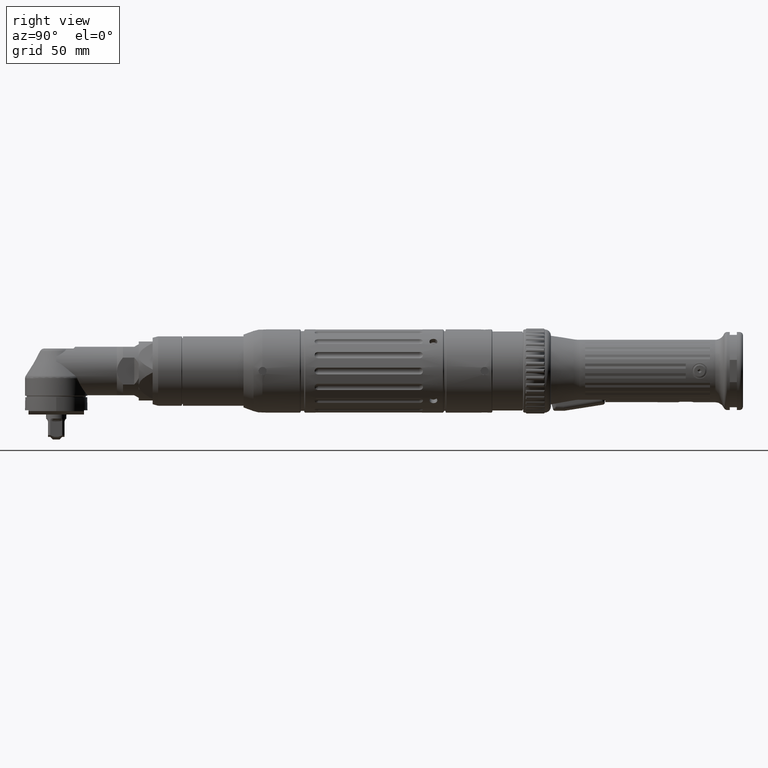
[diagram: clean part render]
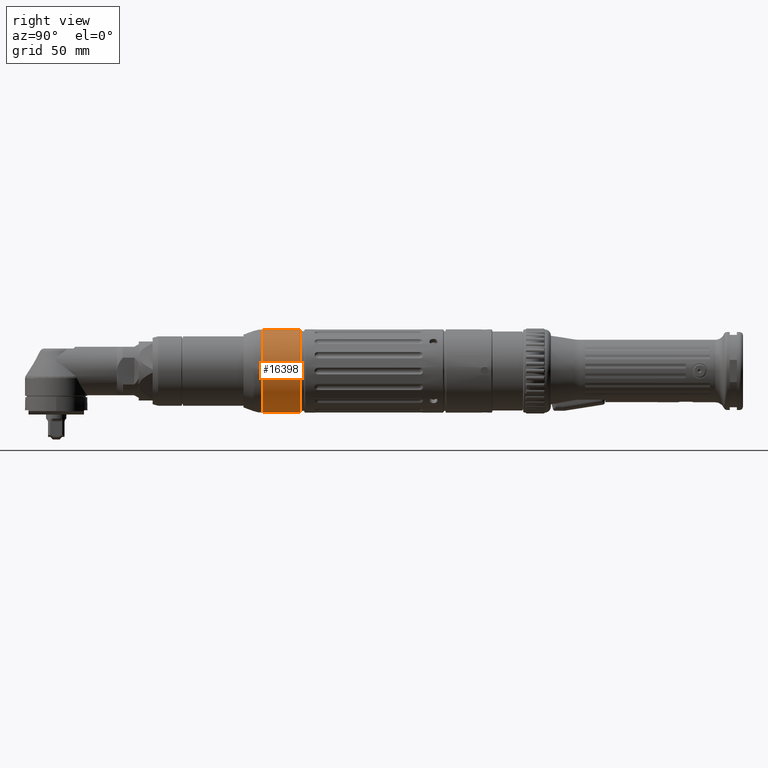
[diagram: same view with one face highlighted and labeled with its STEP entity id]
A machine part, right view. The second image highlights one B-rep face of the part: STEP entity #16398.
In plain terms, the highlighted cylindrical surface (bore or boss wall) has radius 24 mm, axis along (0, 1, 0).
Its self-contained STEP definition (entity closure, byte-faithful):
#2190=B_SPLINE_CURVE_WITH_KNOTS('',3,(#29928,#29929,#29930,#29931,#29932,
#29933,#29934,#29935,#29936,#29937,#29938,#29939,#29940),.UNSPECIFIED.,
 .F.,.F.,(4,2,2,2,3,4),(-0.346780210802976,-0.260085282455453,-0.173390354107931,
-0.0866951770539657,0.,0.011179592561845),.UNSPECIFIED.);
#2191=B_SPLINE_CURVE_WITH_KNOTS('',3,(#29941,#29942,#29943,#29944,#29945,
#29946,#29947,#29948,#29949,#29950,#29951,#29952),.UNSPECIFIED.,.F.,.F.,
(4,2,2,2,2,4),(-0.704740014157611,-0.693560421605951,-0.606865244551986,
-0.52017006749802,-0.433475139150498,-0.346780210802976),.UNSPECIFIED.);
#2192=B_SPLINE_CURVE_WITH_KNOTS('',3,(#29958,#29959,#29960,#29961,#29962,
#29963,#29964,#29965,#29966,#29967,#29968,#29969),.UNSPECIFIED.,.F.,.F.,
(4,2,2,2,2,4),(-0.704740014157612,-0.693560421605951,-0.606865244551985,
-0.52017006749802,-0.433475139150498,-0.346780210802975),.UNSPECIFIED.);
#2193=B_SPLINE_CURVE_WITH_KNOTS('',3,(#29970,#29971,#29972,#29973,#29974,
#29975,#29976,#29977,#29978,#29979,#29980,#29981,#29982),.UNSPECIFIED.,
 .F.,.F.,(4,2,2,2,3,4),(-0.346780210802975,-0.260085282455453,-0.173390354107931,
-0.0866951770539655,0.,0.0111795925618455),.UNSPECIFIED.);
#2194=B_SPLINE_CURVE_WITH_KNOTS('',3,(#29984,#29985,#29986,#29987,#29988,
#29989,#29990,#29991,#29992,#29993,#29994,#29995),.UNSPECIFIED.,.F.,.F.,
(4,2,2,2,2,4),(-0.704740014157611,-0.693560421605951,-0.606865244551985,
-0.52017006749802,-0.433475139150498,-0.346780210802976),.UNSPECIFIED.);
#2195=B_SPLINE_CURVE_WITH_KNOTS('',3,(#29996,#29997,#29998,#29999,#30000,
#30001,#30002,#30003,#30004,#30005,#30006,#30007,#30008),.UNSPECIFIED.,
 .F.,.F.,(4,2,2,2,3,4),(-0.346780210802976,-0.260085282455453,-0.173390354107931,
-0.0866951770539657,0.,0.011179592561845),.UNSPECIFIED.);
#2196=B_SPLINE_CURVE_WITH_KNOTS('',3,(#30010,#30011,#30012,#30013,#30014,
#30015,#30016,#30017,#30018,#30019,#30020,#30021),.UNSPECIFIED.,.F.,.F.,
(4,2,2,2,2,4),(-0.704740014157611,-0.693560421605951,-0.606865244551986,
-0.52017006749802,-0.433475139150498,-0.346780210802976),.UNSPECIFIED.);
#2197=B_SPLINE_CURVE_WITH_KNOTS('',3,(#30022,#30023,#30024,#30025,#30026,
#30027,#30028,#30029,#30030,#30031,#30032,#30033,#30034),.UNSPECIFIED.,
 .F.,.F.,(4,2,2,2,3,4),(-0.346780210802976,-0.260085282455453,-0.173390354107931,
-0.0866951770539657,0.,0.011179592561845),.UNSPECIFIED.);
#2473=CYLINDRICAL_SURFACE('',#18370,24.);
#2751=FACE_BOUND('',#4866,.T.);
#3645=FACE_OUTER_BOUND('',#4865,.T.);
#4865=EDGE_LOOP('',(#13496,#13497,#13498,#13499,#13500,#13501,#13502,#13503,
#13504,#13505,#13506,#13507));
#4866=EDGE_LOOP('',(#13508));
#5925=CIRCLE('',#18357,24.);
#5928=CIRCLE('',#18363,24.);
#5929=CIRCLE('',#18364,24.);
#5930=CIRCLE('',#18365,24.);
#5931=CIRCLE('',#18366,24.);
#7329=VERTEX_POINT('',#29782);
#7332=VERTEX_POINT('',#29818);
#7333=VERTEX_POINT('',#29819);
#7334=VERTEX_POINT('',#29842);
#7336=VERTEX_POINT('',#29862);
#7337=VERTEX_POINT('',#29875);
#7338=VERTEX_POINT('',#29877);
#7339=VERTEX_POINT('',#29900);
#7340=VERTEX_POINT('',#29902);
#7341=VERTEX_POINT('',#29927);
#7343=VERTEX_POINT('',#29957);
#7344=VERTEX_POINT('',#29983);
#7345=VERTEX_POINT('',#30009);
#9427=EDGE_CURVE('',#7329,#7329,#5925,.T.);
#9431=EDGE_CURVE('',#7333,#7334,#5928,.T.);
#9435=EDGE_CURVE('',#7336,#7337,#5929,.T.);
#9437=EDGE_CURVE('',#7338,#7339,#5930,.T.);
#9439=EDGE_CURVE('',#7340,#7332,#5931,.T.);
#9440=EDGE_CURVE('',#7341,#7339,#2190,.T.);
#9441=EDGE_CURVE('',#7340,#7341,#2191,.T.);
#9443=EDGE_CURVE('',#7333,#7343,#2192,.T.);
#9444=EDGE_CURVE('',#7343,#7332,#2193,.T.);
#9445=EDGE_CURVE('',#7338,#7344,#2194,.T.);
#9446=EDGE_CURVE('',#7344,#7337,#2195,.T.);
#9447=EDGE_CURVE('',#7336,#7345,#2196,.T.);
#9448=EDGE_CURVE('',#7345,#7334,#2197,.T.);
#13496=ORIENTED_EDGE('',*,*,#9443,.T.);
#13497=ORIENTED_EDGE('',*,*,#9444,.T.);
#13498=ORIENTED_EDGE('',*,*,#9439,.F.);
#13499=ORIENTED_EDGE('',*,*,#9441,.T.);
#13500=ORIENTED_EDGE('',*,*,#9440,.T.);
#13501=ORIENTED_EDGE('',*,*,#9437,.F.);
#13502=ORIENTED_EDGE('',*,*,#9445,.T.);
#13503=ORIENTED_EDGE('',*,*,#9446,.T.);
#13504=ORIENTED_EDGE('',*,*,#9435,.F.);
#13505=ORIENTED_EDGE('',*,*,#9447,.T.);
#13506=ORIENTED_EDGE('',*,*,#9448,.T.);
#13507=ORIENTED_EDGE('',*,*,#9431,.F.);
#13508=ORIENTED_EDGE('',*,*,#9427,.F.);
#16398=ADVANCED_FACE('',(#3645,#2751),#2473,.T.);
#18357=AXIS2_PLACEMENT_3D('',#29783,#23056,#23057);
#18363=AXIS2_PLACEMENT_3D('',#29843,#23068,#23069);
#18364=AXIS2_PLACEMENT_3D('',#29876,#23070,#23071);
#18365=AXIS2_PLACEMENT_3D('',#29901,#23072,#23073);
#18366=AXIS2_PLACEMENT_3D('',#29925,#23074,#23075);
#18370=AXIS2_PLACEMENT_3D('',#29956,#23082,#23083);
#23056=DIRECTION('center_axis',(3.38618022510672E-15,1.,5.07292882165855E-16));
#23057=DIRECTION('ref_axis',(-1.02028956211981E-14,-5.37238976695126E-16,
1.));
#23068=DIRECTION('center_axis',(-3.38618022510672E-15,-1.,-5.07292882165855E-16));
#23069=DIRECTION('ref_axis',(-1.02641279611555E-14,-5.14109330348768E-16,
1.));
#23070=DIRECTION('center_axis',(-3.38618022510672E-15,-1.,-5.07292882165855E-16));
#23071=DIRECTION('ref_axis',(-1.02641279611555E-14,-5.14109330348768E-16,
1.));
#23072=DIRECTION('center_axis',(-3.38618022510672E-15,-1.,-5.07292882165855E-16));
#23073=DIRECTION('ref_axis',(-1.02641279611555E-14,-5.14109330348768E-16,
1.));
#23074=DIRECTION('center_axis',(-3.38618022510672E-15,-1.,-5.07292882165855E-16));
#23075=DIRECTION('ref_axis',(-1.02641279611555E-14,-5.14109330348768E-16,
1.));
#23082=DIRECTION('center_axis',(3.38618022510672E-15,1.,5.07292882165855E-16));
#23083=DIRECTION('ref_axis',(1.02028956211981E-14,5.37238976695126E-16,
-1.));
#29782=CARTESIAN_POINT('',(2.50395793153569E-13,140.5,-24.));
#29783=CARTESIAN_POINT('Origin',(8.46545056276681E-15,140.5,-3.13697416733667E-14));
#29818=CARTESIAN_POINT('',(23.8898031167809,118.887336968991,-2.2972390039878));
#29819=CARTESIAN_POINT('',(23.8898031167809,118.887336968991,2.29723900398821));
#29842=CARTESIAN_POINT('',(2.2972390039877,118.887336968991,23.8898031167809));
#29843=CARTESIAN_POINT('Origin',(-6.47189216047315E-14,118.887336968991,
-4.23336917936468E-14));
#29862=CARTESIAN_POINT('',(-2.29723900398832,118.887336968991,23.8898031167809));
#29875=CARTESIAN_POINT('',(-23.889803116781,118.887336968991,2.29723900398772));
#29876=CARTESIAN_POINT('Origin',(-6.47189216047315E-14,118.887336968991,
-4.23336917936468E-14));
#29877=CARTESIAN_POINT('',(-23.889803116781,118.887336968991,-2.2972390039883));
#29900=CARTESIAN_POINT('',(-2.29723900398783,118.887336968991,-23.889803116781));
#29901=CARTESIAN_POINT('Origin',(-6.47189216047315E-14,118.887336968991,
-4.23336917936468E-14));
#29902=CARTESIAN_POINT('',(2.29723900398819,118.887336968991,-23.889803116781));
#29925=CARTESIAN_POINT('Origin',(-6.47189216047315E-14,118.887336968991,
-4.23336917936468E-14));
#29927=CARTESIAN_POINT('',(1.88320285149473E-13,121.3,-24.));
#29928=CARTESIAN_POINT('Ctrl Pts',(1.89570581454745E-13,121.3,-24.));
#29929=CARTESIAN_POINT('Ctrl Pts',(-0.288983094491551,121.3,-24.));
#29930=CARTESIAN_POINT('Ctrl Pts',(-0.597107708299541,121.242210372736,
-23.9942458777242));
#29931=CARTESIAN_POINT('Ctrl Pts',(-1.16372820642595,121.007431598232,-23.973445925003));
#29932=CARTESIAN_POINT('Ctrl Pts',(-1.42223895146027,120.830452241998,-23.9586954584596));
#29933=CARTESIAN_POINT('Ctrl Pts',(-1.83045282752928,120.422238365929,-23.9309693575621));
#29934=CARTESIAN_POINT('Ctrl Pts',(-2.00743172739163,120.163727878039,-23.9161892225175));
#29935=CARTESIAN_POINT('Ctrl Pts',(-2.24221015964818,119.59710823924,-23.8953213563371));
#29936=CARTESIAN_POINT('Ctrl Pts',(-2.29999999999982,119.288983923513,-23.8895374588962));
#29937=CARTESIAN_POINT('Ctrl Pts',(-2.29999999999982,119.,-23.8895374588962));
#29938=CARTESIAN_POINT('Ctrl Pts',(-2.29999999999982,118.962734691461,-23.8895374588962));
#29939=CARTESIAN_POINT('Ctrl Pts',(-2.29909337347042,118.925148217854,-23.889624800958));
#29940=CARTESIAN_POINT('Ctrl Pts',(-2.29723900398783,118.887336968991,-23.889803116781));
#29941=CARTESIAN_POINT('Ctrl Pts',(2.29723900398819,118.887336968991,-23.889803116781));
#29942=CARTESIAN_POINT('Ctrl Pts',(2.29909337347221,118.925148217883,-23.8896248009579));
#29943=CARTESIAN_POINT('Ctrl Pts',(2.30000000000018,118.962734691494,-23.8895374588961));
#29944=CARTESIAN_POINT('Ctrl Pts',(2.30000000000018,119.288983923513,-23.8895374588961));
#29945=CARTESIAN_POINT('Ctrl Pts',(2.24221015964854,119.59710823924,-23.895321356337));
#29946=CARTESIAN_POINT('Ctrl Pts',(2.007431727392,120.163727878039,-23.9161892225175));
#29947=CARTESIAN_POINT('Ctrl Pts',(1.83045282752965,120.422238365929,-23.9309693575621));
#29948=CARTESIAN_POINT('Ctrl Pts',(1.42223895146064,120.830452241998,-23.9586954584595));
#29949=CARTESIAN_POINT('Ctrl Pts',(1.16372820642632,121.007431598232,-23.973445925003));
#29950=CARTESIAN_POINT('Ctrl Pts',(0.597107708299917,121.242210372736,-23.9942458777241));
#29951=CARTESIAN_POINT('Ctrl Pts',(0.288983094491929,121.3,-24.));
#29952=CARTESIAN_POINT('Ctrl Pts',(1.89084858881472E-13,121.3,-24.));
#29956=CARTESIAN_POINT('Origin',(-3.1758252478914E-14,128.621216129182,
-3.73957641798193E-14));
#29957=CARTESIAN_POINT('',(23.9999999999999,121.3,2.07949216544461E-13));
#29958=CARTESIAN_POINT('Ctrl Pts',(23.8898031167808,118.887336968991,2.29723900398821));
#29959=CARTESIAN_POINT('Ctrl Pts',(23.8896248009577,118.925148217883,2.29909337347223));
#29960=CARTESIAN_POINT('Ctrl Pts',(23.889537458896,118.962734691494,2.3000000000002));
#29961=CARTESIAN_POINT('Ctrl Pts',(23.889537458896,119.288983923513,2.30000000000021));
#29962=CARTESIAN_POINT('Ctrl Pts',(23.8953213563369,119.59710823924,2.24221015964856));
#29963=CARTESIAN_POINT('Ctrl Pts',(23.9161892225174,120.163727878039,2.00743172739202));
#29964=CARTESIAN_POINT('Ctrl Pts',(23.930969357562,120.422238365929,1.83045282752967));
#29965=CARTESIAN_POINT('Ctrl Pts',(23.9586954584594,120.830452241998,1.42223895146066));
#29966=CARTESIAN_POINT('Ctrl Pts',(23.9734459250029,121.007431598232,1.16372820642634));
#29967=CARTESIAN_POINT('Ctrl Pts',(23.994245877724,121.242210372736,0.597107708299938));
#29968=CARTESIAN_POINT('Ctrl Pts',(23.9999999999999,121.3,0.28898309449195));
#29969=CARTESIAN_POINT('Ctrl Pts',(23.9999999999999,121.3,2.09832151654155E-13));
#29970=CARTESIAN_POINT('Ctrl Pts',(23.9999999999999,121.3,2.06362704702201E-13));
#29971=CARTESIAN_POINT('Ctrl Pts',(23.9999999999999,121.3,-0.288983094491534));
#29972=CARTESIAN_POINT('Ctrl Pts',(23.9942458777241,121.242210372736,-0.597107708299519));
#29973=CARTESIAN_POINT('Ctrl Pts',(23.9734459250029,121.007431598232,-1.16372820642593));
#29974=CARTESIAN_POINT('Ctrl Pts',(23.9586954584595,120.830452241998,-1.42223895146025));
#29975=CARTESIAN_POINT('Ctrl Pts',(23.930969357562,120.422238365929,-1.83045282752926));
#29976=CARTESIAN_POINT('Ctrl Pts',(23.9161892225174,120.163727878039,-2.00743172739161));
#29977=CARTESIAN_POINT('Ctrl Pts',(23.895321356337,119.59710823924,-2.24221015964815));
#29978=CARTESIAN_POINT('Ctrl Pts',(23.8895374588961,119.288983923513,-2.29999999999979));
#29979=CARTESIAN_POINT('Ctrl Pts',(23.8895374588961,119.,-2.29999999999979));
#29980=CARTESIAN_POINT('Ctrl Pts',(23.8895374588961,118.96273469146,-2.29999999999979));
#29981=CARTESIAN_POINT('Ctrl Pts',(23.8896248009579,118.925148217854,-2.29909337347039));
#29982=CARTESIAN_POINT('Ctrl Pts',(23.8898031167809,118.887336968991,-2.2972390039878));
#29983=CARTESIAN_POINT('',(-24.,121.3,-2.87668077908957E-13));
#29984=CARTESIAN_POINT('Ctrl Pts',(-23.889803116781,118.887336968991,-2.2972390039883));
#29985=CARTESIAN_POINT('Ctrl Pts',(-23.8896248009579,118.925148217884,-2.29909337347232));
#29986=CARTESIAN_POINT('Ctrl Pts',(-23.8895374588961,118.962734691495,-2.30000000000029));
#29987=CARTESIAN_POINT('Ctrl Pts',(-23.8895374588961,119.288983923513,-2.30000000000029));
#29988=CARTESIAN_POINT('Ctrl Pts',(-23.895321356337,119.59710823924,-2.24221015964865));
#29989=CARTESIAN_POINT('Ctrl Pts',(-23.9161892225175,120.163727878039,-2.0074317273921));
#29990=CARTESIAN_POINT('Ctrl Pts',(-23.9309693575621,120.422238365929,-1.83045282752975));
#29991=CARTESIAN_POINT('Ctrl Pts',(-23.9586954584595,120.830452241998,-1.42223895146074));
#29992=CARTESIAN_POINT('Ctrl Pts',(-23.973445925003,121.007431598232,-1.16372820642642));
#29993=CARTESIAN_POINT('Ctrl Pts',(-23.9942458777242,121.242210372736,-0.597107708300016));
#29994=CARTESIAN_POINT('Ctrl Pts',(-24.0000000000001,121.3,-0.288983094492028));
#29995=CARTESIAN_POINT('Ctrl Pts',(-24.0000000000001,121.3,-2.88137569359748E-13));
#29996=CARTESIAN_POINT('Ctrl Pts',(-24.0000000000001,121.3,-2.88588597463502E-13));
#29997=CARTESIAN_POINT('Ctrl Pts',(-24.0000000000001,121.3,0.288983094491452));
#29998=CARTESIAN_POINT('Ctrl Pts',(-23.9942458777242,121.242210372736,0.597107708299442));
#29999=CARTESIAN_POINT('Ctrl Pts',(-23.9734459250031,121.007431598232,1.16372820642585));
#30000=CARTESIAN_POINT('Ctrl Pts',(-23.9586954584596,120.830452241998,1.42223895146017));
#30001=CARTESIAN_POINT('Ctrl Pts',(-23.9309693575621,120.422238365929,1.83045282752918));
#30002=CARTESIAN_POINT('Ctrl Pts',(-23.9161892225176,120.163727878039,2.00743172739153));
#30003=CARTESIAN_POINT('Ctrl Pts',(-23.8953213563371,119.59710823924,2.24221015964807));
#30004=CARTESIAN_POINT('Ctrl Pts',(-23.8895374588962,119.288983923513,2.29999999999971));
#30005=CARTESIAN_POINT('Ctrl Pts',(-23.8895374588962,119.,2.29999999999971));
#30006=CARTESIAN_POINT('Ctrl Pts',(-23.8895374588962,118.962734691461,2.29999999999971));
#30007=CARTESIAN_POINT('Ctrl Pts',(-23.8896248009581,118.925148217854,2.29909337347031));
#30008=CARTESIAN_POINT('Ctrl Pts',(-23.889803116781,118.887336968991,2.29723900398772));
#30009=CARTESIAN_POINT('',(-3.04357856985991E-13,121.3,24.));
#30010=CARTESIAN_POINT('Ctrl Pts',(-2.29723900398832,118.887336968991,23.8898031167809));
#30011=CARTESIAN_POINT('Ctrl Pts',(-2.29909337347234,118.925148217883,23.8896248009578));
#30012=CARTESIAN_POINT('Ctrl Pts',(-2.30000000000031,118.962734691494,23.889537458896));
#30013=CARTESIAN_POINT('Ctrl Pts',(-2.30000000000031,119.288983923513,23.889537458896));
#30014=CARTESIAN_POINT('Ctrl Pts',(-2.24221015964867,119.59710823924,23.8953213563369));
#30015=CARTESIAN_POINT('Ctrl Pts',(-2.00743172739212,120.163727878039,23.9161892225174));
#30016=CARTESIAN_POINT('Ctrl Pts',(-1.83045282752977,120.422238365929,23.930969357562));
#30017=CARTESIAN_POINT('Ctrl Pts',(-1.42223895146076,120.830452241998,23.9586954584594));
#30018=CARTESIAN_POINT('Ctrl Pts',(-1.16372820642644,121.007431598232,23.9734459250029));
#30019=CARTESIAN_POINT('Ctrl Pts',(-0.597107708300034,121.242210372736,
23.9942458777241));
#30020=CARTESIAN_POINT('Ctrl Pts',(-0.288983094492046,121.3,24.));
#30021=CARTESIAN_POINT('Ctrl Pts',(-3.05658276467113E-13,121.3,24.));
#30022=CARTESIAN_POINT('Ctrl Pts',(-3.05311331771918E-13,121.3,24.));
#30023=CARTESIAN_POINT('Ctrl Pts',(0.288983094491435,121.3,24.));
#30024=CARTESIAN_POINT('Ctrl Pts',(0.597107708299425,121.242210372736,23.9942458777241));
#30025=CARTESIAN_POINT('Ctrl Pts',(1.16372820642583,121.007431598232,23.973445925003));
#30026=CARTESIAN_POINT('Ctrl Pts',(1.42223895146015,120.830452241998,23.9586954584595));
#30027=CARTESIAN_POINT('Ctrl Pts',(1.83045282752916,120.422238365929,23.930969357562));
#30028=CARTESIAN_POINT('Ctrl Pts',(2.00743172739151,120.163727878039,23.9161892225175));
#30029=CARTESIAN_POINT('Ctrl Pts',(2.24221015964805,119.59710823924,23.895321356337));
#30030=CARTESIAN_POINT('Ctrl Pts',(2.29999999999969,119.288983923513,23.8895374588961));
#30031=CARTESIAN_POINT('Ctrl Pts',(2.29999999999969,119.,23.8895374588961));
#30032=CARTESIAN_POINT('Ctrl Pts',(2.29999999999969,118.96273469146,23.8895374588961));
#30033=CARTESIAN_POINT('Ctrl Pts',(2.29909337347028,118.925148217854,23.889624800958));
#30034=CARTESIAN_POINT('Ctrl Pts',(2.2972390039877,118.887336968991,23.8898031167809));